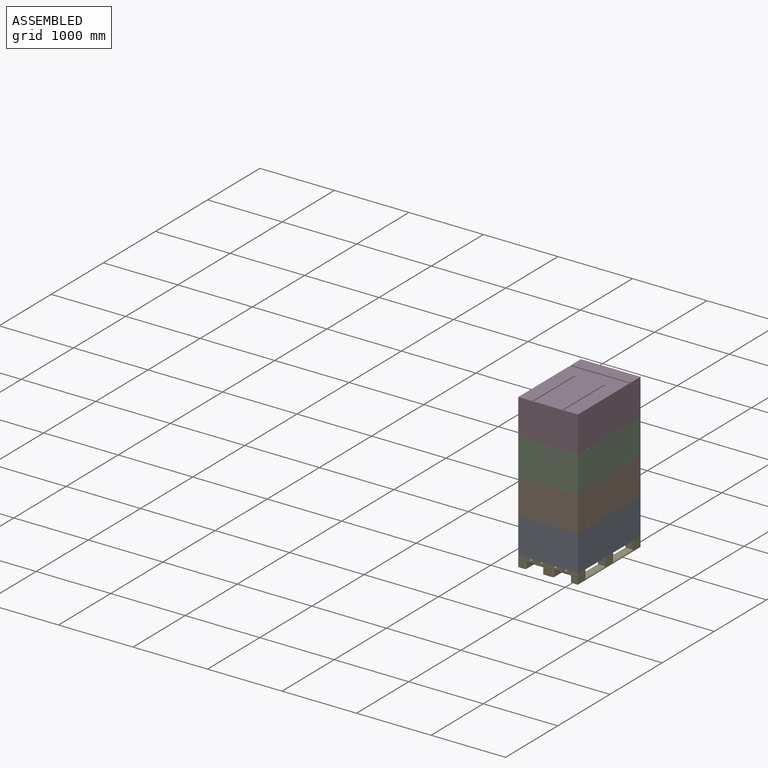
[diagram: assembled view]
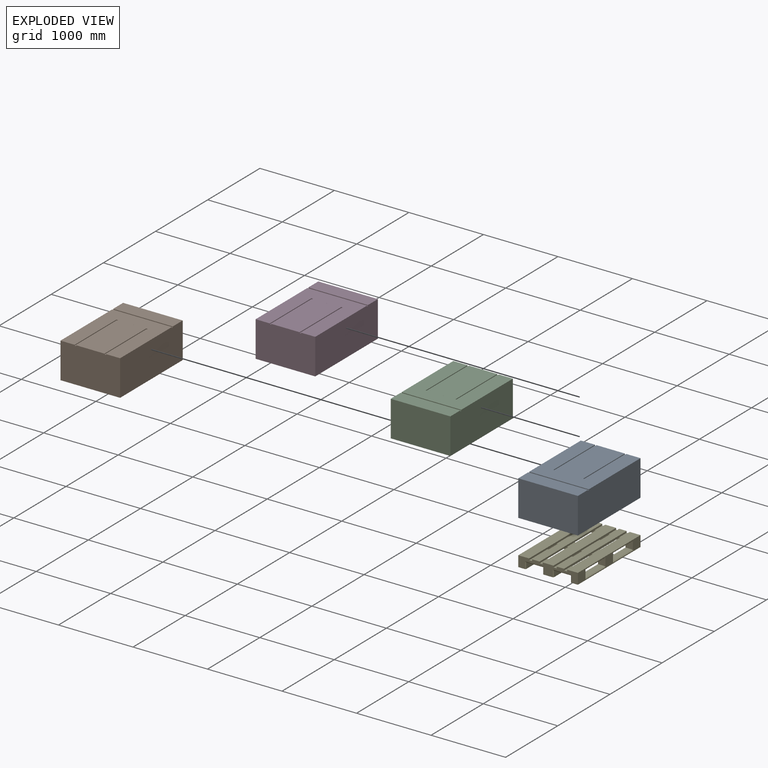
[diagram: exploded view]
GUIDED TOUR — MATED ASSEMBLY WITH SUBASSEMBLIES (Onshape document 587bd369c399921773db5a21, AutoMate assembly 587bd369c399921773db5a21_6dd30b9d593e8284821ba635_bafe4c9b4b4416e4691de342_default)

This assembly has 13 component occurrences arranged in 5 top-level units: 1 individual components plus 4 subassemblies (S0, S1, S2, S3). The tour has two levels: first the top level, where each subassembly is treated as one rigid unit; then each subassembly is toured internally in its own section (nesting deeper than one subassembly level is flattened into its subassembly's section).

Components are labeled P0..P12 across the whole record; subassembly units are labeled S0..S3. A mate is a constraint between two units; its type names the relative motion it leaves free:
  FASTENED — locks the two components together rigidly (no relative motion),
  PARALLEL — keeps the two listed directions parallel.
Axis/direction vectors are unit vectors and 'through' points are millimeter coordinates, both in the assembly's world frame.

TOP-LEVEL MATES (between units; each subassembly's internal mates are listed in its own section)
  1. FASTENED "Fastened 3": S2 <-> S1, direction (1.000, 0.000, 0.000) through (123.76, -934.06, 770.14) mm
  2. FASTENED "Fastened 4": S3 <-> S2, direction (1.000, 0.000, 0.000) through (123.76, -934.06, 1250.14) mm
  3. FASTENED "Fastened 1": S0 <-> P6, direction (0.000, -1.000, 0.000) through (-676.24, -934.06, -189.86) mm
  4. FASTENED "Fastened 2": S1 <-> S0, direction (1.000, 0.000, 0.000) through (123.76, -934.06, 290.14) mm

TOP-LEVEL ASSEMBLY ORDER
  1. P6 — the base component [order verified]
  2. S0 [order verified]
  3. S2 [order verified]
  4. S3 [order verified]
  5. S1 [order verified]
Order-tag legend:
  [order verified] — this step's position reverses a verified removal order: the component was checked to insert without passing through the ones already placed.

Of the 13 component occurrences, 12 carry the full construction recipe — the FeatureScript program that regenerates the part's solid from scratch; the rest are supplied as boundary geometry only. Each toured unit is shown spotlighted twice — assembled, then exploded with a leader line back to its socket (green = recipe-attached component, orange = geometry-only, blue = subassembly unit; the rest desaturated gray).
NOTE — document 2 of 2 of this assembly tour. The two overview renders and the header above are repeated from document 1; the component sections below continue where the previous document stopped.
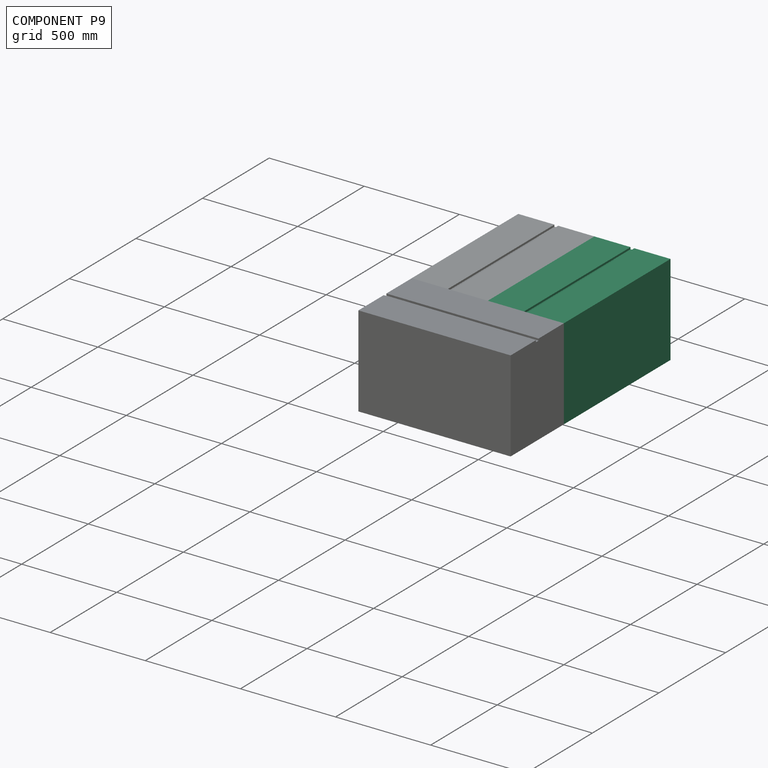
[diagram: component P9 — assembled]
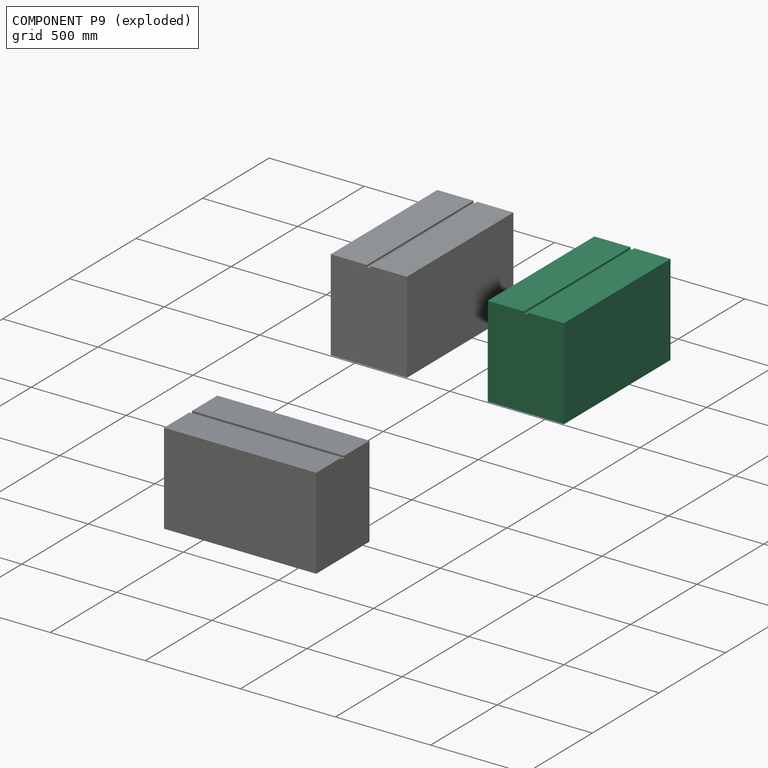
[diagram: component P9 — exploded]
COMPONENT P9 — recipe-attached (CADFS 00449918, mesh-verified: the recipe's output STEP matches this component's geometry to below the mesh-comparison resolution (tessellation chordal tolerance ~1.52 mm)).
Held by: FASTENED mate "Fastened 1" to P2; FASTENED mate "Fastened 1" to P2.
Construction recipe (FeatureScript — the CAD program that rebuilds this solid; sketch coordinates are in the units given by the * unit suffixes, e.g. mm):

FeatureScript 1511;
import(path : "onshape/std/geometry.fs", version : "1511.0");
import(path : "onshape/std/common.fs", version : "1511.0");
const mm = millimeter;
const VERTEX = EntityType.VERTEX;
const EDGE = EntityType.EDGE;
const FACE = EntityType.FACE;
const BODY = EntityType.BODY;
function v(x, y){return vector(x, y);}
function OD(order){return orderDisambiguation(order);}
function OSD(set){return originalSetDisambiguation(set);}
function TD(topology){return topologyDisambiguation(topology);}
function TDD(query){return trueDependencyDisambiguation(query);}
function sQuery(a, b, c) {return sketchEntityQuery(a, b, c);}

annotation { "Feature Type Name" : "Feature", "Feature Type Description" : "" }
export const myFeature = defineFeature(function(context is Context, id is Id, definition is map)
    precondition{}
    {
        {
            var Q0;
            Q0=qCreatedBy(makeId("Right.planeOp"),FACE);
            var sketch = newSketch(context, id + "F0", { "sketchPlane" : qUnion([Q0])});
            skLineSegment(sketch, "E0.bottom", {"start": v(-160.6, 343.56) * mm, "end": v(239.4, 343.56) * mm});
            skLineSegment(sketch, "E0.top", {"start": v(-160.6, -136.44) * mm, "end": v(239.4, -136.44) * mm});
            skLineSegment(sketch, "E0.left", {"start": v(-160.6, 343.56) * mm, "end": v(-160.6, -136.44) * mm});
            skLineSegment(sketch, "E0.right", {"start": v(239.4, 343.56) * mm, "end": v(239.4, -136.44) * mm});
            skSolve(sketch);
        }
        {
            var Q0;
            Q0=qSketchRegion(id+"F0",true);
            extrude(context, id + "F1", {"entities" : qUnion([Q0]), "flatOperationType" : FlatOperationType.REMOVE, "oppositeDirection" : true, "offsetDistance" : 25 * mm, "depth" : 800 * mm, "domain" : OperationDomain.MODEL});
        }
        {
            var Q0;
            Q0=makeQuery(id+"F1.opExtrude","CAP_FACE",FACE,{"disambiguationData":[OSD([sQuery(id+"F0.wireOp",EDGE,"E0.bottom"),sQuery(id+"F0.wireOp",EDGE,"E0.top"),sQuery(id+"F0.wireOp",EDGE,"E0.left"),sQuery(id+"F0.wireOp",EDGE,"E0.right")])],"isStart":true});
            var sketch = newSketch(context, id + "F2", { "sketchPlane" : qUnion([Q0])});
            skLineSegment(sketch, "E1.bottom", {"start": v(29.4, 343.56) * mm, "end": v(49.4, 343.56) * mm});
            skLineSegment(sketch, "E1.top", {"start": v(29.4, 333.56) * mm, "end": v(49.4, 333.56) * mm});
            skLineSegment(sketch, "E1.left", {"start": v(29.4, 343.56) * mm, "end": v(29.4, 333.56) * mm});
            skLineSegment(sketch, "E1.right", {"start": v(49.4, 343.56) * mm, "end": v(49.4, 333.56) * mm});
            skLineSegment(sketch, "E2.top", {"start": v(39.4, 343.56) * mm, "end": v(93.02, 343.56) * mm});
            skLineSegment(sketch, "E2.left", {"start": v(39.4, 343.56) * mm, "end": v(39.4, 343.56) * mm});
            skLineSegment(sketch, "E2.right", {"start": v(93.02, 332.94) * mm, "end": v(93.02, 343.56) * mm});
            skSolve(sketch);
        }
        {
            var Q0;
            Q0=qSketchRegion(id+"F2",true);
            extrude(context, id + "F3", {"entities" : qUnion([Q0]), "operationType" : NewBodyOperationType.REMOVE, "flatOperationType" : FlatOperationType.REMOVE, "oppositeDirection" : true, "offsetDistance" : 25 * mm, "depth" : 800 * mm, "domain" : OperationDomain.MODEL});
        }
    });
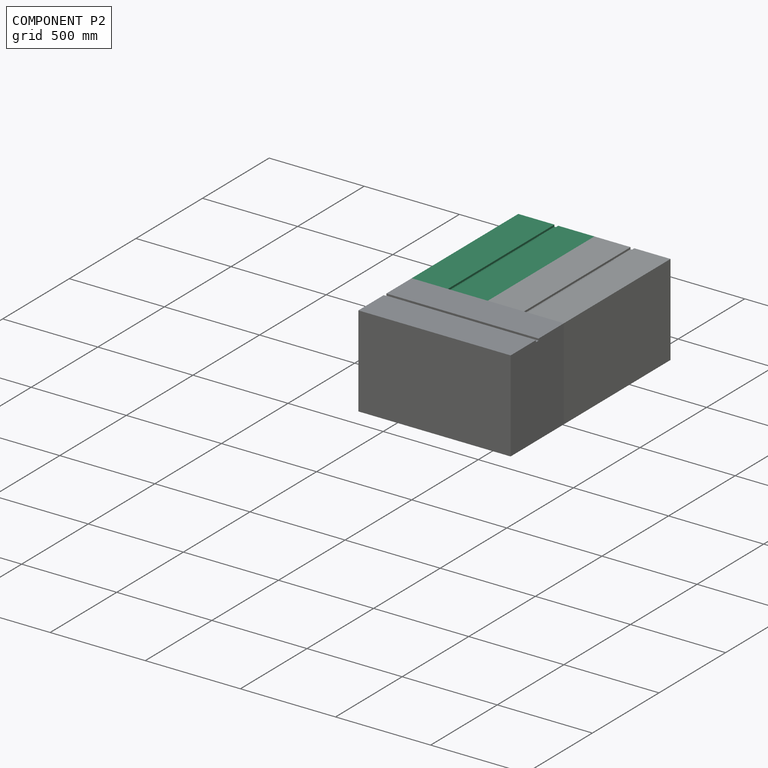
[diagram: component P2 — assembled]
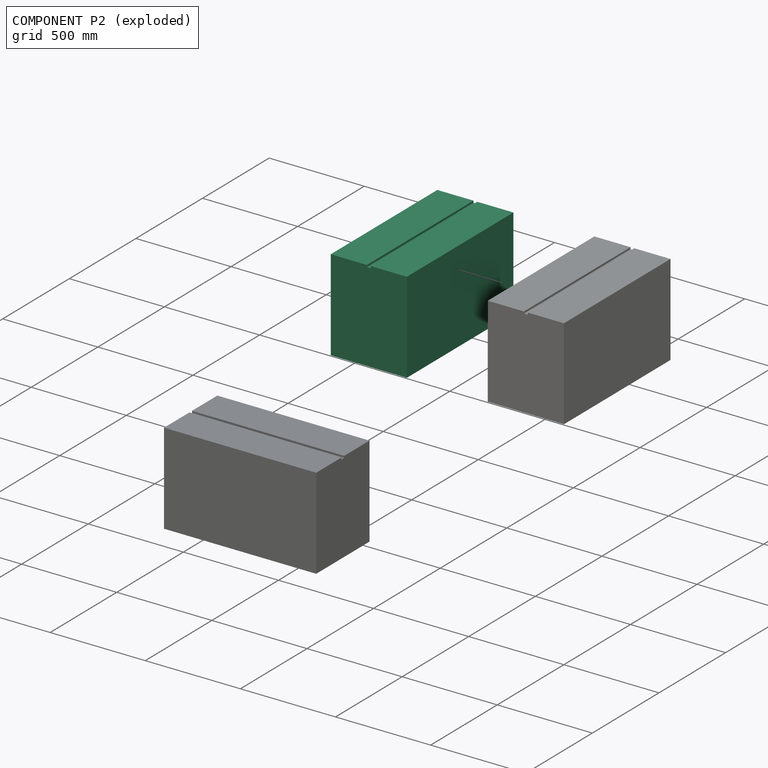
[diagram: component P2 — exploded]
COMPONENT P2 — recipe-attached (CADFS 00449918, mesh-verified: the recipe's output STEP matches this component's geometry to below the mesh-comparison resolution (tessellation chordal tolerance ~1.52 mm)).
Held by: PARALLEL mate "Parallel 1" to P5; FASTENED mate "Fastened 1" to P9; FASTENED mate "Fastened 1" to P9; PARALLEL mate "Parallel 1" to P5.
Construction recipe (FeatureScript — the CAD program that rebuilds this solid; sketch coordinates are in the units given by the * unit suffixes, e.g. mm):

FeatureScript 1511;
import(path : "onshape/std/geometry.fs", version : "1511.0");
import(path : "onshape/std/common.fs", version : "1511.0");
const mm = millimeter;
const VERTEX = EntityType.VERTEX;
const EDGE = EntityType.EDGE;
const FACE = EntityType.FACE;
const BODY = EntityType.BODY;
function v(x, y){return vector(x, y);}
function OD(order){return orderDisambiguation(order);}
function OSD(set){return originalSetDisambiguation(set);}
function TD(topology){return topologyDisambiguation(topology);}
function TDD(query){return trueDependencyDisambiguation(query);}
function sQuery(a, b, c) {return sketchEntityQuery(a, b, c);}

annotation { "Feature Type Name" : "Feature", "Feature Type Description" : "" }
export const myFeature = defineFeature(function(context is Context, id is Id, definition is map)
    precondition{}
    {
        {
            var Q0;
            Q0=qCreatedBy(makeId("Right.planeOp"),FACE);
            var sketch = newSketch(context, id + "F0", { "sketchPlane" : qUnion([Q0])});
            skLineSegment(sketch, "E0.bottom", {"start": v(-160.6, 343.56) * mm, "end": v(239.4, 343.56) * mm});
            skLineSegment(sketch, "E0.top", {"start": v(-160.6, -136.44) * mm, "end": v(239.4, -136.44) * mm});
            skLineSegment(sketch, "E0.left", {"start": v(-160.6, 343.56) * mm, "end": v(-160.6, -136.44) * mm});
            skLineSegment(sketch, "E0.right", {"start": v(239.4, 343.56) * mm, "end": v(239.4, -136.44) * mm});
            skSolve(sketch);
        }
        {
            var Q0;
            Q0=qSketchRegion(id+"F0",true);
            extrude(context, id + "F1", {"entities" : qUnion([Q0]), "flatOperationType" : FlatOperationType.REMOVE, "oppositeDirection" : true, "offsetDistance" : 25 * mm, "depth" : 800 * mm, "domain" : OperationDomain.MODEL});
        }
        {
            var Q0;
            Q0=makeQuery(id+"F1.opExtrude","CAP_FACE",FACE,{"disambiguationData":[OSD([sQuery(id+"F0.wireOp",EDGE,"E0.bottom"),sQuery(id+"F0.wireOp",EDGE,"E0.top"),sQuery(id+"F0.wireOp",EDGE,"E0.left"),sQuery(id+"F0.wireOp",EDGE,"E0.right")])],"isStart":true});
            var sketch = newSketch(context, id + "F2", { "sketchPlane" : qUnion([Q0])});
            skLineSegment(sketch, "E1.bottom", {"start": v(29.4, 343.56) * mm, "end": v(49.4, 343.56) * mm});
            skLineSegment(sketch, "E1.top", {"start": v(29.4, 333.56) * mm, "end": v(49.4, 333.56) * mm});
            skLineSegment(sketch, "E1.left", {"start": v(29.4, 343.56) * mm, "end": v(29.4, 333.56) * mm});
            skLineSegment(sketch, "E1.right", {"start": v(49.4, 343.56) * mm, "end": v(49.4, 333.56) * mm});
            skLineSegment(sketch, "E2.top", {"start": v(39.4, 343.56) * mm, "end": v(93.02, 343.56) * mm});
            skLineSegment(sketch, "E2.left", {"start": v(39.4, 343.56) * mm, "end": v(39.4, 343.56) * mm});
            skLineSegment(sketch, "E2.right", {"start": v(93.02, 332.94) * mm, "end": v(93.02, 343.56) * mm});
            skSolve(sketch);
        }
        {
            var Q0;
            Q0=qSketchRegion(id+"F2",true);
            extrude(context, id + "F3", {"entities" : qUnion([Q0]), "operationType" : NewBodyOperationType.REMOVE, "flatOperationType" : FlatOperationType.REMOVE, "oppositeDirection" : true, "offsetDistance" : 25 * mm, "depth" : 800 * mm, "domain" : OperationDomain.MODEL});
        }
    });
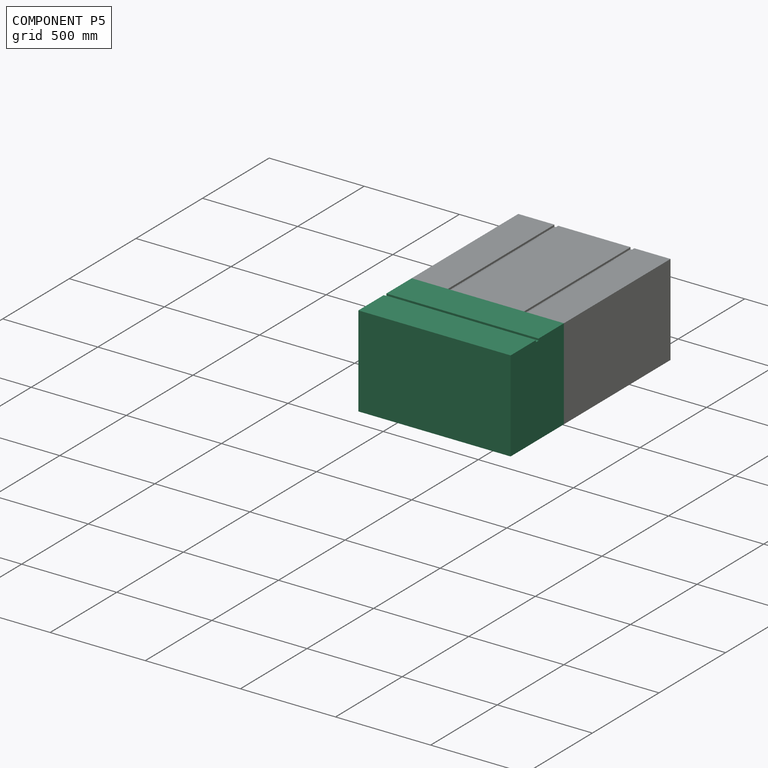
[diagram: component P5 — assembled]
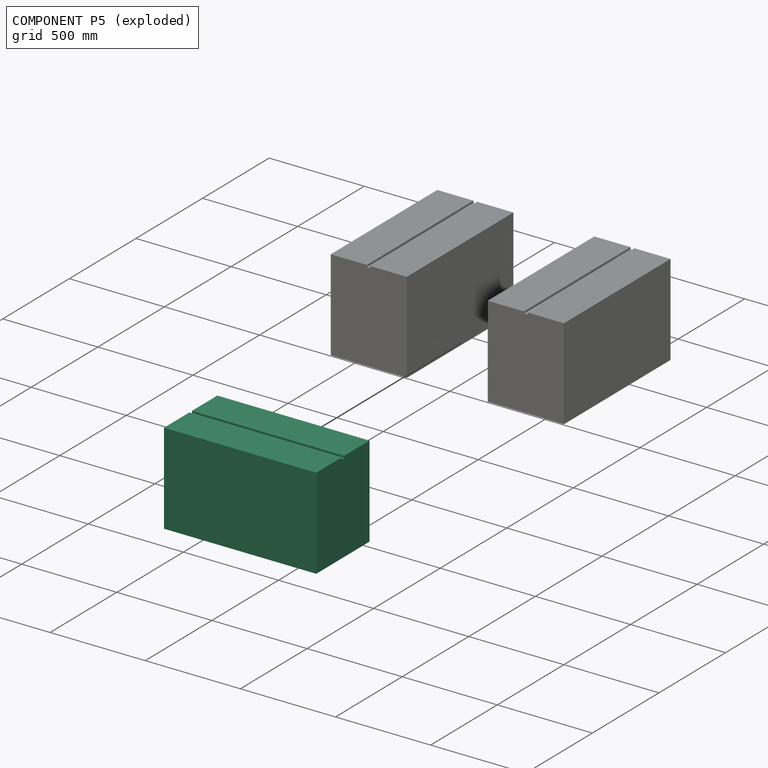
[diagram: component P5 — exploded]
COMPONENT P5 — recipe-attached (CADFS 00449918, mesh-verified: the recipe's output STEP matches this component's geometry to below the mesh-comparison resolution (tessellation chordal tolerance ~1.52 mm)).
Held by: PARALLEL mate "Parallel 1" to P2; PARALLEL mate "Parallel 1" to P2.
Construction recipe (FeatureScript — the CAD program that rebuilds this solid; sketch coordinates are in the units given by the * unit suffixes, e.g. mm):

FeatureScript 1511;
import(path : "onshape/std/geometry.fs", version : "1511.0");
import(path : "onshape/std/common.fs", version : "1511.0");
const mm = millimeter;
const VERTEX = EntityType.VERTEX;
const EDGE = EntityType.EDGE;
const FACE = EntityType.FACE;
const BODY = EntityType.BODY;
function v(x, y){return vector(x, y);}
function OD(order){return orderDisambiguation(order);}
function OSD(set){return originalSetDisambiguation(set);}
function TD(topology){return topologyDisambiguation(topology);}
function TDD(query){return trueDependencyDisambiguation(query);}
function sQuery(a, b, c) {return sketchEntityQuery(a, b, c);}

annotation { "Feature Type Name" : "Feature", "Feature Type Description" : "" }
export const myFeature = defineFeature(function(context is Context, id is Id, definition is map)
    precondition{}
    {
        {
            var Q0;
            Q0=qCreatedBy(makeId("Right.planeOp"),FACE);
            var sketch = newSketch(context, id + "F0", { "sketchPlane" : qUnion([Q0])});
            skLineSegment(sketch, "E0.bottom", {"start": v(-160.6, 343.56) * mm, "end": v(239.4, 343.56) * mm});
            skLineSegment(sketch, "E0.top", {"start": v(-160.6, -136.44) * mm, "end": v(239.4, -136.44) * mm});
            skLineSegment(sketch, "E0.left", {"start": v(-160.6, 343.56) * mm, "end": v(-160.6, -136.44) * mm});
            skLineSegment(sketch, "E0.right", {"start": v(239.4, 343.56) * mm, "end": v(239.4, -136.44) * mm});
            skSolve(sketch);
        }
        {
            var Q0;
            Q0=qSketchRegion(id+"F0",true);
            extrude(context, id + "F1", {"entities" : qUnion([Q0]), "flatOperationType" : FlatOperationType.REMOVE, "oppositeDirection" : true, "offsetDistance" : 25 * mm, "depth" : 800 * mm, "domain" : OperationDomain.MODEL});
        }
        {
            var Q0;
            Q0=makeQuery(id+"F1.opExtrude","CAP_FACE",FACE,{"disambiguationData":[OSD([sQuery(id+"F0.wireOp",EDGE,"E0.bottom"),sQuery(id+"F0.wireOp",EDGE,"E0.top"),sQuery(id+"F0.wireOp",EDGE,"E0.left"),sQuery(id+"F0.wireOp",EDGE,"E0.right")])],"isStart":true});
            var sketch = newSketch(context, id + "F2", { "sketchPlane" : qUnion([Q0])});
            skLineSegment(sketch, "E1.bottom", {"start": v(29.4, 343.56) * mm, "end": v(49.4, 343.56) * mm});
            skLineSegment(sketch, "E1.top", {"start": v(29.4, 333.56) * mm, "end": v(49.4, 333.56) * mm});
            skLineSegment(sketch, "E1.left", {"start": v(29.4, 343.56) * mm, "end": v(29.4, 333.56) * mm});
            skLineSegment(sketch, "E1.right", {"start": v(49.4, 343.56) * mm, "end": v(49.4, 333.56) * mm});
            skLineSegment(sketch, "E2.top", {"start": v(39.4, 343.56) * mm, "end": v(93.02, 343.56) * mm});
            skLineSegment(sketch, "E2.left", {"start": v(39.4, 343.56) * mm, "end": v(39.4, 343.56) * mm});
            skLineSegment(sketch, "E2.right", {"start": v(93.02, 332.94) * mm, "end": v(93.02, 343.56) * mm});
            skSolve(sketch);
        }
        {
            var Q0;
            Q0=qSketchRegion(id+"F2",true);
            extrude(context, id + "F3", {"entities" : qUnion([Q0]), "operationType" : NewBodyOperationType.REMOVE, "flatOperationType" : FlatOperationType.REMOVE, "oppositeDirection" : true, "offsetDistance" : 25 * mm, "depth" : 800 * mm, "domain" : OperationDomain.MODEL});
        }
    });
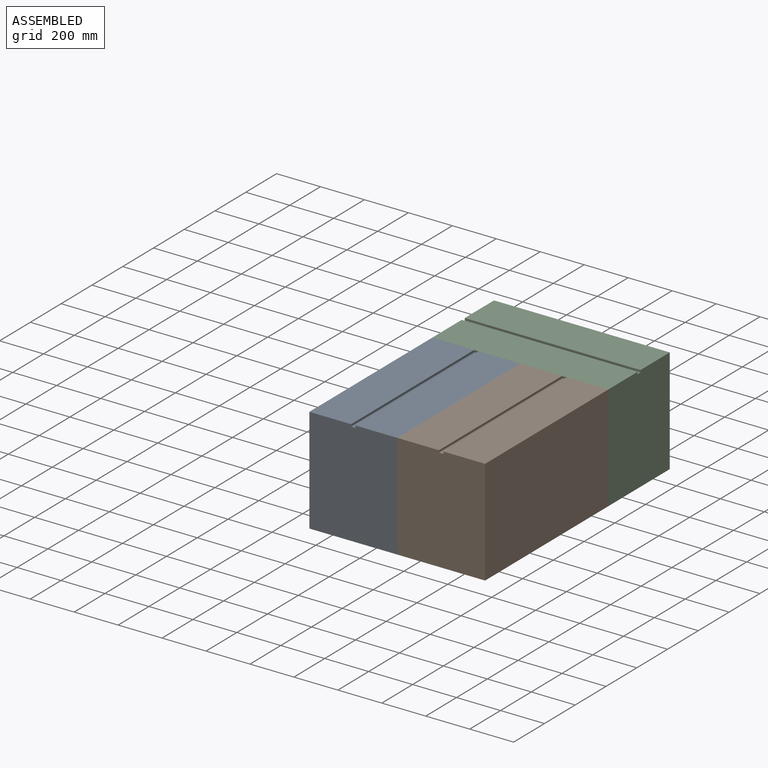
[diagram: subassembly S3 — assembled view]
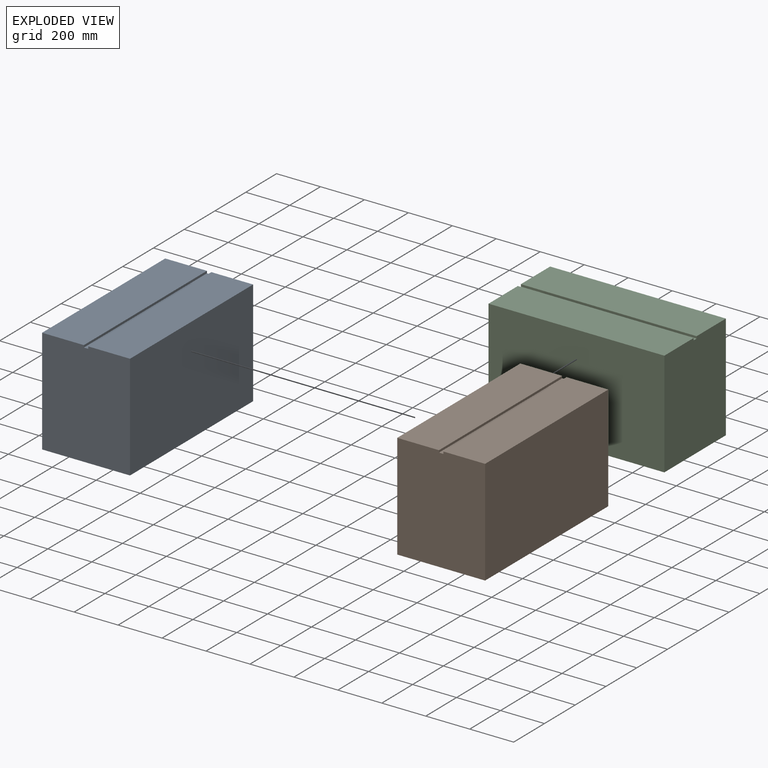
[diagram: subassembly S3 — exploded view]
SUBASSEMBLY S3 TOUR — 3 components, shown here in isolation at its own camera.

INTERNAL MATES
  1. PARALLEL "Parallel 1": P10 <-> P4, direction (0.000, -1.000, 0.000) through (123.76, -134.06, 1490.14) mm
  2. FASTENED "Fastened 1": P3 <-> P4, direction (1.000, 0.000, 0.000) through (-276.24, -134.06, 1250.14) mm
  3. FASTENED "Fastened 1": P3 <-> P4, direction (1.000, 0.000, 0.000) through (-276.24, -134.06, 1250.14) mm
  4. PARALLEL "Parallel 1": P10 <-> P4, direction (0.000, -1.000, 0.000) through (123.76, -134.06, 1490.14) mm

ASSEMBLY ORDER (within the subassembly)
  1. P4 — the base component [order verified]
  2. P3 [order verified]
  3. P10 [order verified]
Order-tag legend:
  [order verified] — this step's position reverses a verified removal order: the component was checked to insert without passing through the ones already placed.
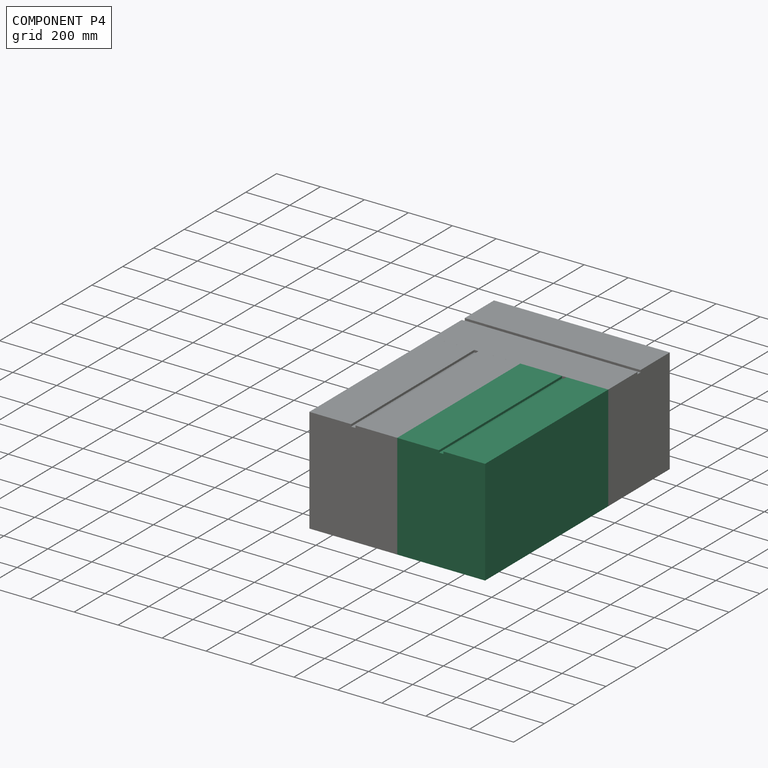
[diagram: component P4 — assembled]
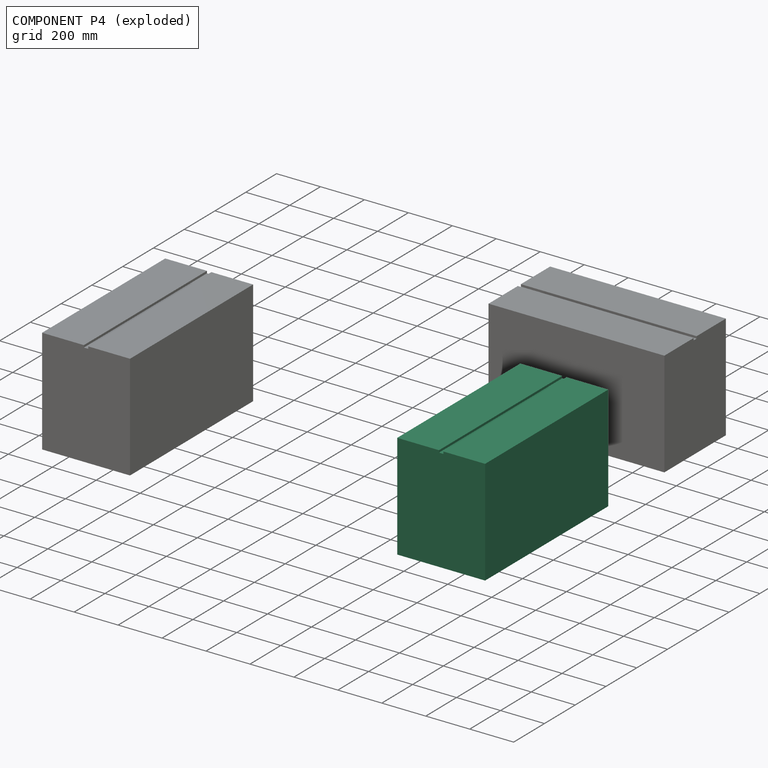
[diagram: component P4 — exploded]
COMPONENT P4 — recipe-attached (CADFS 00449918, mesh-verified: the recipe's output STEP matches this component's geometry to below the mesh-comparison resolution (tessellation chordal tolerance ~1.52 mm)).
Held by: PARALLEL mate "Parallel 1" to P10; FASTENED mate "Fastened 1" to P3; FASTENED mate "Fastened 1" to P3; PARALLEL mate "Parallel 1" to P10.
Construction recipe (FeatureScript — the CAD program that rebuilds this solid; sketch coordinates are in the units given by the * unit suffixes, e.g. mm):

FeatureScript 1511;
import(path : "onshape/std/geometry.fs", version : "1511.0");
import(path : "onshape/std/common.fs", version : "1511.0");
const mm = millimeter;
const VERTEX = EntityType.VERTEX;
const EDGE = EntityType.EDGE;
const FACE = EntityType.FACE;
const BODY = EntityType.BODY;
function v(x, y){return vector(x, y);}
function OD(order){return orderDisambiguation(order);}
function OSD(set){return originalSetDisambiguation(set);}
function TD(topology){return topologyDisambiguation(topology);}
function TDD(query){return trueDependencyDisambiguation(query);}
function sQuery(a, b, c) {return sketchEntityQuery(a, b, c);}

annotation { "Feature Type Name" : "Feature", "Feature Type Description" : "" }
export const myFeature = defineFeature(function(context is Context, id is Id, definition is map)
    precondition{}
    {
        {
            var Q0;
            Q0=qCreatedBy(makeId("Right.planeOp"),FACE);
            var sketch = newSketch(context, id + "F0", { "sketchPlane" : qUnion([Q0])});
            skLineSegment(sketch, "E0.bottom", {"start": v(-160.6, 343.56) * mm, "end": v(239.4, 343.56) * mm});
            skLineSegment(sketch, "E0.top", {"start": v(-160.6, -136.44) * mm, "end": v(239.4, -136.44) * mm});
            skLineSegment(sketch, "E0.left", {"start": v(-160.6, 343.56) * mm, "end": v(-160.6, -136.44) * mm});
            skLineSegment(sketch, "E0.right", {"start": v(239.4, 343.56) * mm, "end": v(239.4, -136.44) * mm});
            skSolve(sketch);
        }
        {
            var Q0;
            Q0=qSketchRegion(id+"F0",true);
            extrude(context, id + "F1", {"entities" : qUnion([Q0]), "flatOperationType" : FlatOperationType.REMOVE, "oppositeDirection" : true, "offsetDistance" : 25 * mm, "depth" : 800 * mm, "domain" : OperationDomain.MODEL});
        }
        {
            var Q0;
            Q0=makeQuery(id+"F1.opExtrude","CAP_FACE",FACE,{"disambiguationData":[OSD([sQuery(id+"F0.wireOp",EDGE,"E0.bottom"),sQuery(id+"F0.wireOp",EDGE,"E0.top"),sQuery(id+"F0.wireOp",EDGE,"E0.left"),sQuery(id+"F0.wireOp",EDGE,"E0.right")])],"isStart":true});
            var sketch = newSketch(context, id + "F2", { "sketchPlane" : qUnion([Q0])});
            skLineSegment(sketch, "E1.bottom", {"start": v(29.4, 343.56) * mm, "end": v(49.4, 343.56) * mm});
            skLineSegment(sketch, "E1.top", {"start": v(29.4, 333.56) * mm, "end": v(49.4, 333.56) * mm});
            skLineSegment(sketch, "E1.left", {"start": v(29.4, 343.56) * mm, "end": v(29.4, 333.56) * mm});
            skLineSegment(sketch, "E1.right", {"start": v(49.4, 343.56) * mm, "end": v(49.4, 333.56) * mm});
            skLineSegment(sketch, "E2.top", {"start": v(39.4, 343.56) * mm, "end": v(93.02, 343.56) * mm});
            skLineSegment(sketch, "E2.left", {"start": v(39.4, 343.56) * mm, "end": v(39.4, 343.56) * mm});
            skLineSegment(sketch, "E2.right", {"start": v(93.02, 332.94) * mm, "end": v(93.02, 343.56) * mm});
            skSolve(sketch);
        }
        {
            var Q0;
            Q0=qSketchRegion(id+"F2",true);
            extrude(context, id + "F3", {"entities" : qUnion([Q0]), "operationType" : NewBodyOperationType.REMOVE, "flatOperationType" : FlatOperationType.REMOVE, "oppositeDirection" : true, "offsetDistance" : 25 * mm, "depth" : 800 * mm, "domain" : OperationDomain.MODEL});
        }
    });
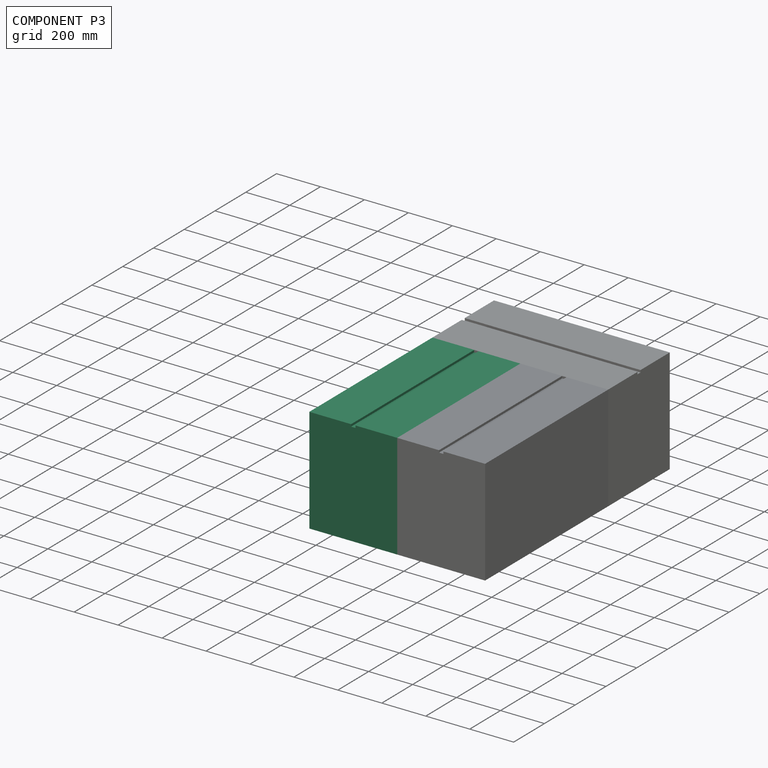
[diagram: component P3 — assembled]
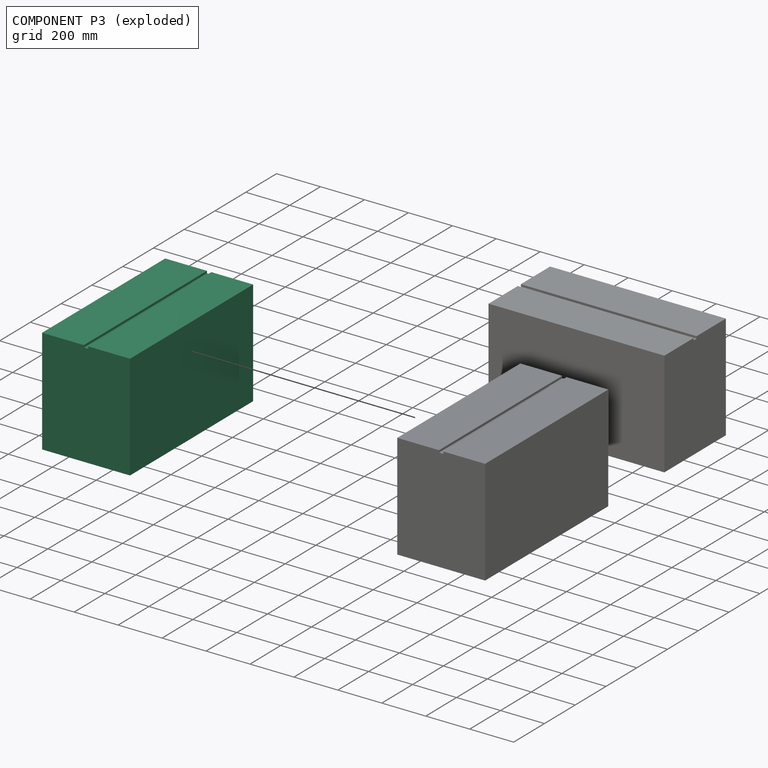
[diagram: component P3 — exploded]
COMPONENT P3 — recipe-attached (CADFS 00449918, mesh-verified: the recipe's output STEP matches this component's geometry to below the mesh-comparison resolution (tessellation chordal tolerance ~1.52 mm)).
Held by: FASTENED mate "Fastened 1" to P4; FASTENED mate "Fastened 1" to P4.
Construction recipe (FeatureScript — the CAD program that rebuilds this solid; sketch coordinates are in the units given by the * unit suffixes, e.g. mm):

FeatureScript 1511;
import(path : "onshape/std/geometry.fs", version : "1511.0");
import(path : "onshape/std/common.fs", version : "1511.0");
const mm = millimeter;
const VERTEX = EntityType.VERTEX;
const EDGE = EntityType.EDGE;
const FACE = EntityType.FACE;
const BODY = EntityType.BODY;
function v(x, y){return vector(x, y);}
function OD(order){return orderDisambiguation(order);}
function OSD(set){return originalSetDisambiguation(set);}
function TD(topology){return topologyDisambiguation(topology);}
function TDD(query){return trueDependencyDisambiguation(query);}
function sQuery(a, b, c) {return sketchEntityQuery(a, b, c);}

annotation { "Feature Type Name" : "Feature", "Feature Type Description" : "" }
export const myFeature = defineFeature(function(context is Context, id is Id, definition is map)
    precondition{}
    {
        {
            var Q0;
            Q0=qCreatedBy(makeId("Right.planeOp"),FACE);
            var sketch = newSketch(context, id + "F0", { "sketchPlane" : qUnion([Q0])});
            skLineSegment(sketch, "E0.bottom", {"start": v(-160.6, 343.56) * mm, "end": v(239.4, 343.56) * mm});
            skLineSegment(sketch, "E0.top", {"start": v(-160.6, -136.44) * mm, "end": v(239.4, -136.44) * mm});
            skLineSegment(sketch, "E0.left", {"start": v(-160.6, 343.56) * mm, "end": v(-160.6, -136.44) * mm});
            skLineSegment(sketch, "E0.right", {"start": v(239.4, 343.56) * mm, "end": v(239.4, -136.44) * mm});
            skSolve(sketch);
        }
        {
            var Q0;
            Q0=qSketchRegion(id+"F0",true);
            extrude(context, id + "F1", {"entities" : qUnion([Q0]), "flatOperationType" : FlatOperationType.REMOVE, "oppositeDirection" : true, "offsetDistance" : 25 * mm, "depth" : 800 * mm, "domain" : OperationDomain.MODEL});
        }
        {
            var Q0;
            Q0=makeQuery(id+"F1.opExtrude","CAP_FACE",FACE,{"disambiguationData":[OSD([sQuery(id+"F0.wireOp",EDGE,"E0.bottom"),sQuery(id+"F0.wireOp",EDGE,"E0.top"),sQuery(id+"F0.wireOp",EDGE,"E0.left"),sQuery(id+"F0.wireOp",EDGE,"E0.right")])],"isStart":true});
            var sketch = newSketch(context, id + "F2", { "sketchPlane" : qUnion([Q0])});
            skLineSegment(sketch, "E1.bottom", {"start": v(29.4, 343.56) * mm, "end": v(49.4, 343.56) * mm});
            skLineSegment(sketch, "E1.top", {"start": v(29.4, 333.56) * mm, "end": v(49.4, 333.56) * mm});
            skLineSegment(sketch, "E1.left", {"start": v(29.4, 343.56) * mm, "end": v(29.4, 333.56) * mm});
            skLineSegment(sketch, "E1.right", {"start": v(49.4, 343.56) * mm, "end": v(49.4, 333.56) * mm});
            skLineSegment(sketch, "E2.top", {"start": v(39.4, 343.56) * mm, "end": v(93.02, 343.56) * mm});
            skLineSegment(sketch, "E2.left", {"start": v(39.4, 343.56) * mm, "end": v(39.4, 343.56) * mm});
            skLineSegment(sketch, "E2.right", {"start": v(93.02, 332.94) * mm, "end": v(93.02, 343.56) * mm});
            skSolve(sketch);
        }
        {
            var Q0;
            Q0=qSketchRegion(id+"F2",true);
            extrude(context, id + "F3", {"entities" : qUnion([Q0]), "operationType" : NewBodyOperationType.REMOVE, "flatOperationType" : FlatOperationType.REMOVE, "oppositeDirection" : true, "offsetDistance" : 25 * mm, "depth" : 800 * mm, "domain" : OperationDomain.MODEL});
        }
    });
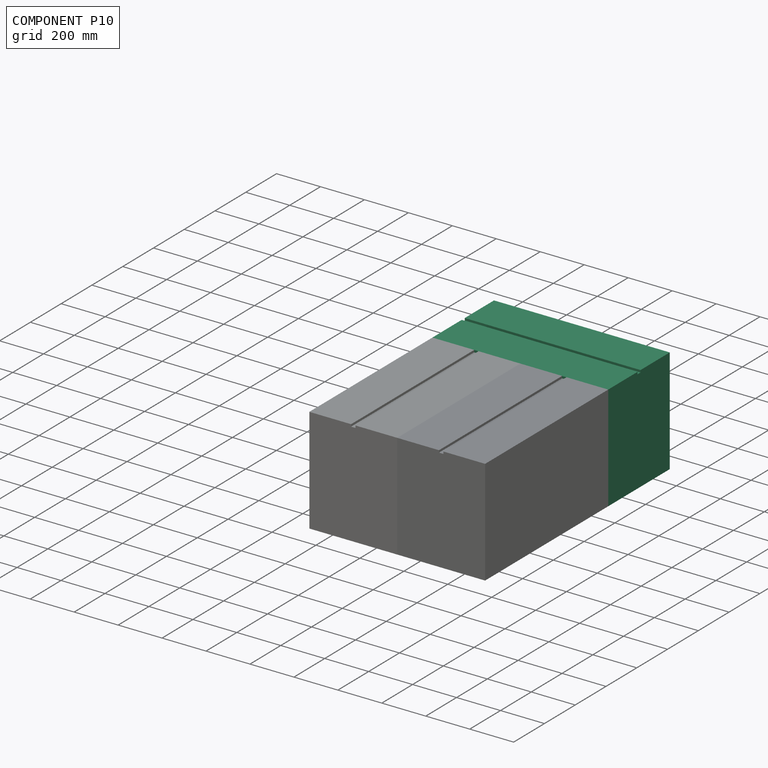
[diagram: component P10 — assembled]
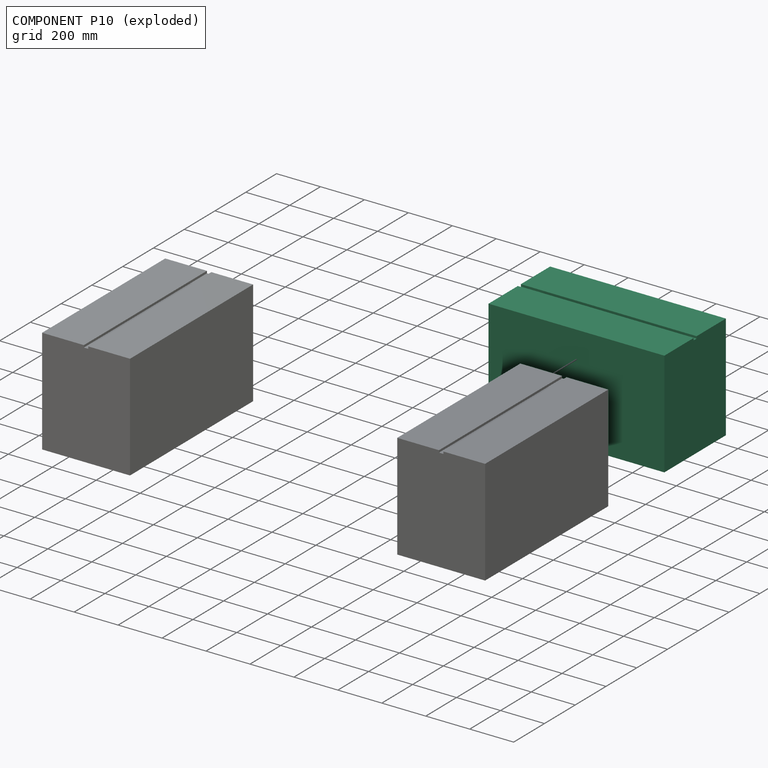
[diagram: component P10 — exploded]
COMPONENT P10 — recipe-attached (CADFS 00449918, mesh-verified: the recipe's output STEP matches this component's geometry to below the mesh-comparison resolution (tessellation chordal tolerance ~1.52 mm)).
Held by: PARALLEL mate "Parallel 1" to P4; PARALLEL mate "Parallel 1" to P4.
Construction recipe (FeatureScript — the CAD program that rebuilds this solid; sketch coordinates are in the units given by the * unit suffixes, e.g. mm):

FeatureScript 1511;
import(path : "onshape/std/geometry.fs", version : "1511.0");
import(path : "onshape/std/common.fs", version : "1511.0");
const mm = millimeter;
const VERTEX = EntityType.VERTEX;
const EDGE = EntityType.EDGE;
const FACE = EntityType.FACE;
const BODY = EntityType.BODY;
function v(x, y){return vector(x, y);}
function OD(order){return orderDisambiguation(order);}
function OSD(set){return originalSetDisambiguation(set);}
function TD(topology){return topologyDisambiguation(topology);}
function TDD(query){return trueDependencyDisambiguation(query);}
function sQuery(a, b, c) {return sketchEntityQuery(a, b, c);}

annotation { "Feature Type Name" : "Feature", "Feature Type Description" : "" }
export const myFeature = defineFeature(function(context is Context, id is Id, definition is map)
    precondition{}
    {
        {
            var Q0;
            Q0=qCreatedBy(makeId("Right.planeOp"),FACE);
            var sketch = newSketch(context, id + "F0", { "sketchPlane" : qUnion([Q0])});
            skLineSegment(sketch, "E0.bottom", {"start": v(-160.6, 343.56) * mm, "end": v(239.4, 343.56) * mm});
            skLineSegment(sketch, "E0.top", {"start": v(-160.6, -136.44) * mm, "end": v(239.4, -136.44) * mm});
            skLineSegment(sketch, "E0.left", {"start": v(-160.6, 343.56) * mm, "end": v(-160.6, -136.44) * mm});
            skLineSegment(sketch, "E0.right", {"start": v(239.4, 343.56) * mm, "end": v(239.4, -136.44) * mm});
            skSolve(sketch);
        }
        {
            var Q0;
            Q0=qSketchRegion(id+"F0",true);
            extrude(context, id + "F1", {"entities" : qUnion([Q0]), "flatOperationType" : FlatOperationType.REMOVE, "oppositeDirection" : true, "offsetDistance" : 25 * mm, "depth" : 800 * mm, "domain" : OperationDomain.MODEL});
        }
        {
            var Q0;
            Q0=makeQuery(id+"F1.opExtrude","CAP_FACE",FACE,{"disambiguationData":[OSD([sQuery(id+"F0.wireOp",EDGE,"E0.bottom"),sQuery(id+"F0.wireOp",EDGE,"E0.top"),sQuery(id+"F0.wireOp",EDGE,"E0.left"),sQuery(id+"F0.wireOp",EDGE,"E0.right")])],"isStart":true});
            var sketch = newSketch(context, id + "F2", { "sketchPlane" : qUnion([Q0])});
            skLineSegment(sketch, "E1.bottom", {"start": v(29.4, 343.56) * mm, "end": v(49.4, 343.56) * mm});
            skLineSegment(sketch, "E1.top", {"start": v(29.4, 333.56) * mm, "end": v(49.4, 333.56) * mm});
            skLineSegment(sketch, "E1.left", {"start": v(29.4, 343.56) * mm, "end": v(29.4, 333.56) * mm});
            skLineSegment(sketch, "E1.right", {"start": v(49.4, 343.56) * mm, "end": v(49.4, 333.56) * mm});
            skLineSegment(sketch, "E2.top", {"start": v(39.4, 343.56) * mm, "end": v(93.02, 343.56) * mm});
            skLineSegment(sketch, "E2.left", {"start": v(39.4, 343.56) * mm, "end": v(39.4, 343.56) * mm});
            skLineSegment(sketch, "E2.right", {"start": v(93.02, 332.94) * mm, "end": v(93.02, 343.56) * mm});
            skSolve(sketch);
        }
        {
            var Q0;
            Q0=qSketchRegion(id+"F2",true);
            extrude(context, id + "F3", {"entities" : qUnion([Q0]), "operationType" : NewBodyOperationType.REMOVE, "flatOperationType" : FlatOperationType.REMOVE, "oppositeDirection" : true, "offsetDistance" : 25 * mm, "depth" : 800 * mm, "domain" : OperationDomain.MODEL});
        }
    });
PROVENANCE & LICENSES
Assembly (occurrences, transforms, mates, per-part STEP geometry): AutoMate dataset, Zenodo record 7776208, CC0.
Construction recipes: CADFS (HuggingFace VladPyatov/CADFS, CC-BY-4.0, layered over the ABC dataset), FeatureScript reconstruction programs keyed by ABC model id.
Join: ABC meta listings map ABC model id -> Onshape documentId; within a shared document, parts are matched by geometric signature (bounding-box dims + volume at 0.1% relative tolerance, exact B-rep face/solid counts).
Verification: 12 of this assembly's 13 components carry a recipe attachment, and every attachment is mesh-verified: the CADFS STEP and the AutoMate member STEP were compared as meshes in their shared local frame (symmetric sampled-point-to-mesh distance); worst across the 12 attachments: below the mesh-comparison resolution (tessellation chordal tolerance ~1.52 mm) on a 1015 mm part.
Renders: orthographic iso camera (az 35 / el 25); the floor grid conveys scale (grid pitch printed in each image; no ruler). In the exploded view each component is displaced by its stored offset vector: the offsets alone carry the explosion direction (mate normal/axis signs are not orientation cues and do not encode it), and separation distances are assigned per mate-chain, not proportionally to assembly-order depth.
